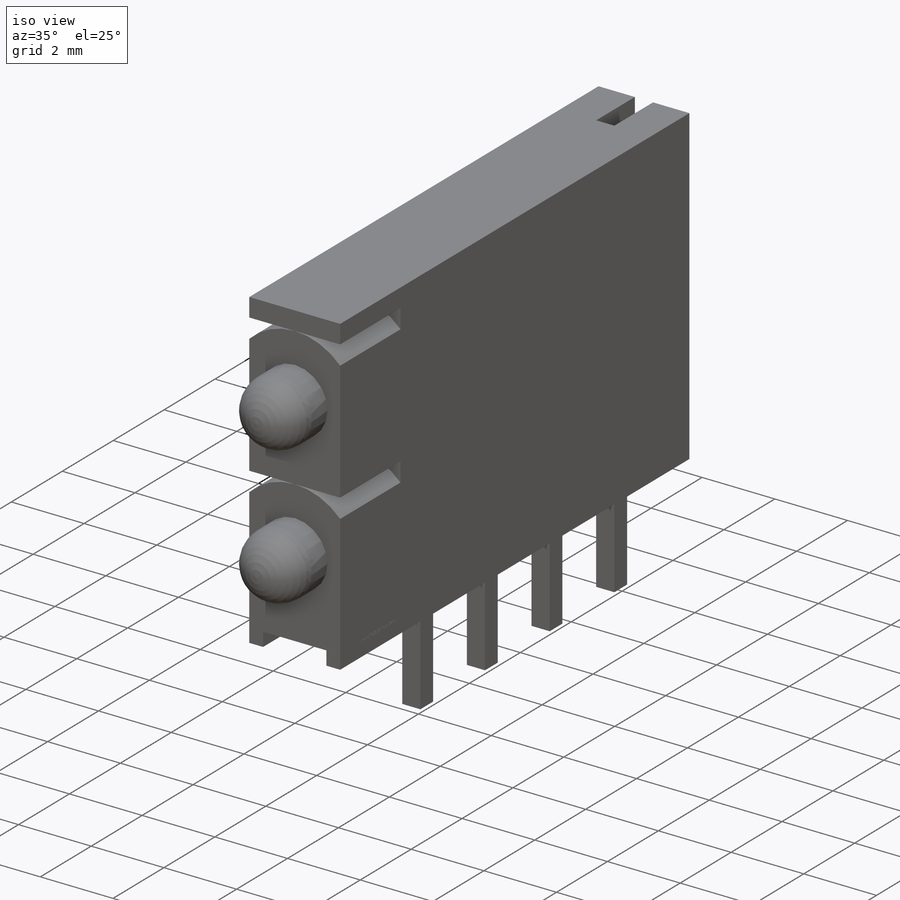
[diagram: iso view]
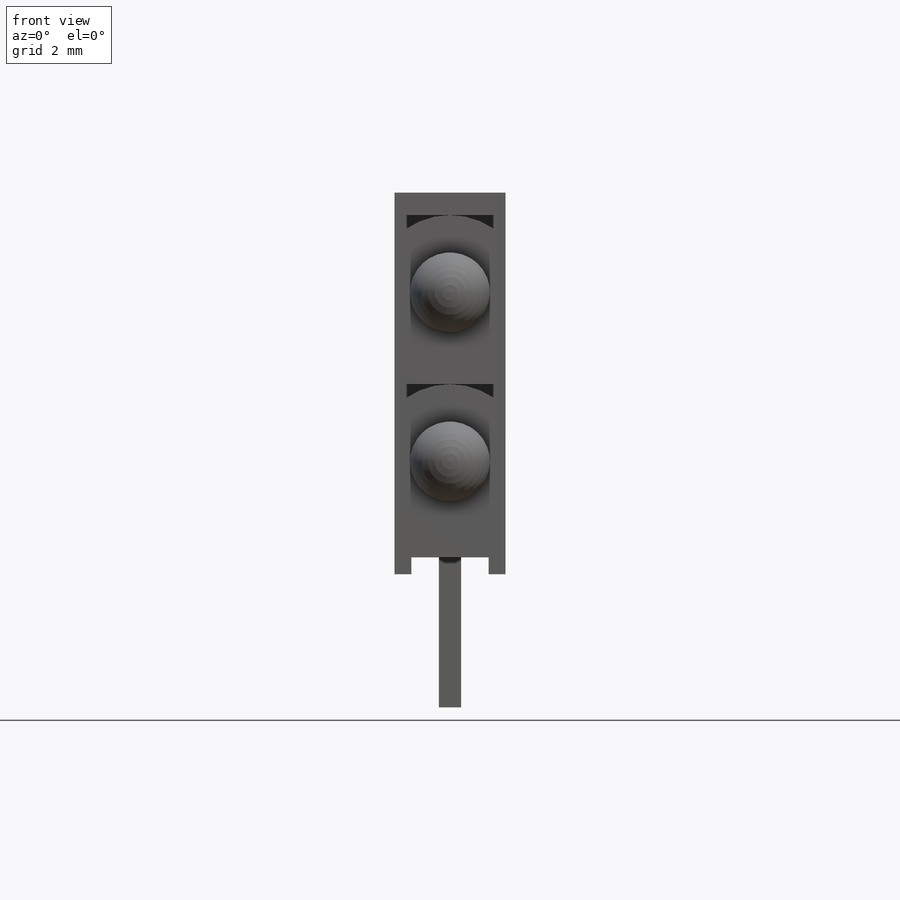
[diagram: front view]
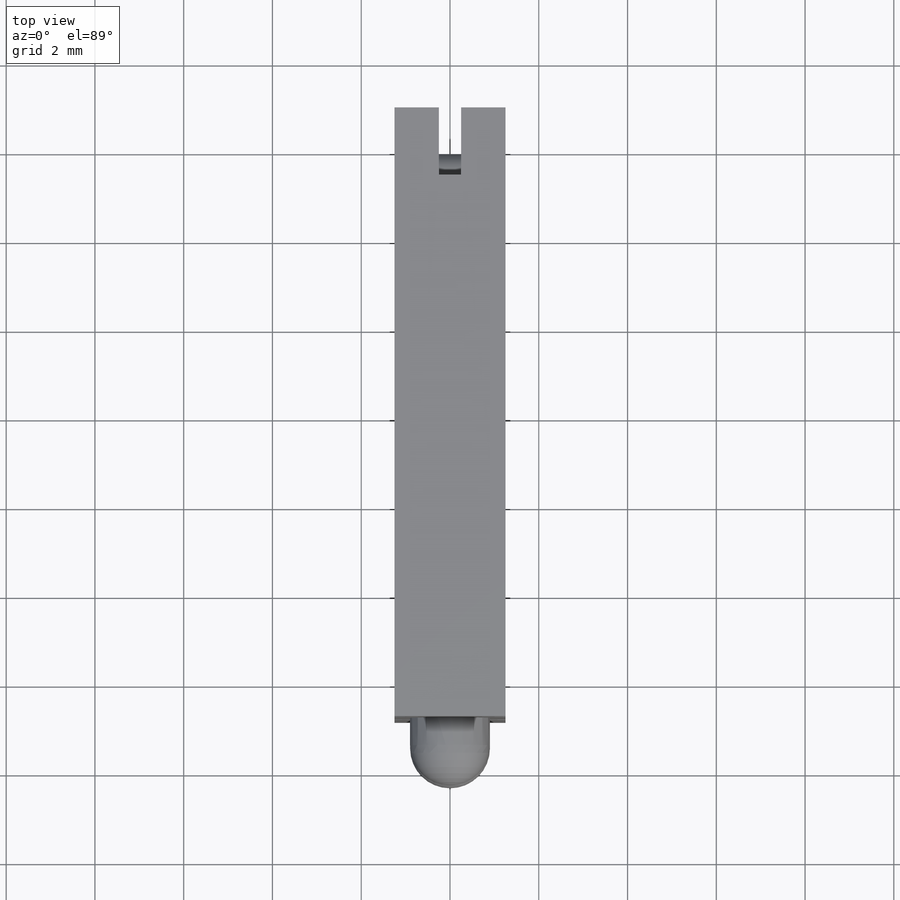
[diagram: top view]
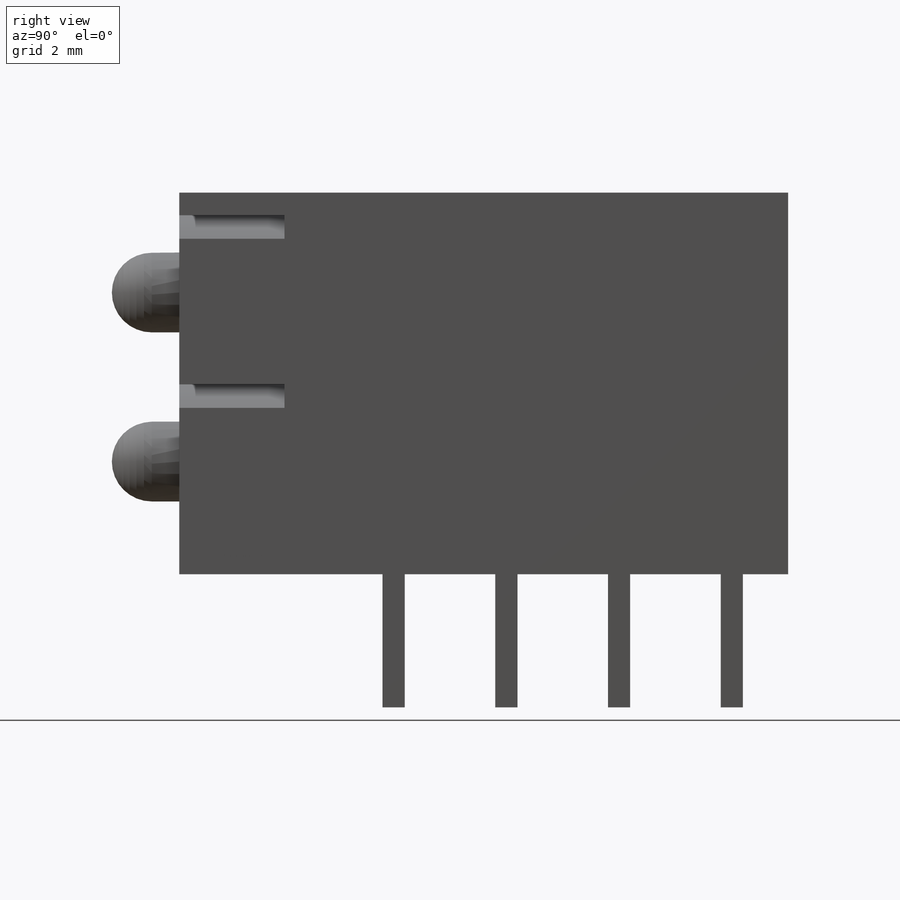
[diagram: right view]
SOLIDWORKS PART (.sldprt)
format: sldprt  version: not decoded by parser v0  size: 772,608 bytes
history: native  units: mm
features: sketch x12, extrude x5, cut_extrude x5, revolve x2, material x1, fillet x1 (+11 scaffold rows collapsed)
feature tree (37):
  scaffold x11  (default folders/planes/origin — collapsed)
  material  "Material <not specified>"
  sketch  "Sketch1"  dims[c1.D3=1.8mm c1.D1=8.6mm c1.D2=13.72mm c1.D4=3.6mm c1.D5=2.54mm c1.D6=5.08mm c1.D7=5.08mm c1.D8=5.08mm c1.D9=0.5mm c1.D10=1.94mm c1.D11=3.7mm c1.D12=7.4mm c1.D13=1.0mm c1.D14=2.0mm c2.D4=1.52mm c2.D5=2.54mm c2.D6=3.81mm c2.D7=2.37mm c2.D8=~2.183318mm c3.D7=0.38mm]
  extrude  "Extrude1"  Depth=2.5mm
  sketch  "Sketch2"  dims[c1.D1=0.5mm c1.D2=0.7mm c1.D3=0.5mm c2.D2=0.31mm c2.D1=0.8mm c3.D2=0.38mm c3.D3=0.38mm c3.D4=0.38mm]
  cut_extrude  "Cut-Extrude4"  Depth=2.37mm
  extrude  "Extrude8"  [1 undecoded]
  sketch  "Sketch2<8>"  dims[D1=2.37mm]
  revolve  "Revolve1"  [1 undecoded]
  sketch  "Sketch1<10>"  dims[D1=360.0deg]
  revolve  "Revolve2"  [1 undecoded]
  sketch  "Sketch1<11>"  dims[D1=360.0deg]
  cut_extrude  "Cut-Extrude5"  [1 undecoded]
  sketch  "Sketch2<9>"
  sketch  "Sketch3"  dims[c1.D1=0.5mm c1.D2=0.5mm c1.D3=0.5mm c1.D4=0.5mm c1.D5=0.5mm c1.D6=4.3mm c1.D7=0.5mm c2.D7=90.0deg c3.D7=2.54mm c3.D8=2.54mm c3.D9=2.54mm c3.D6=4.83mm]
  cut_extrude  "Cut-Extrude6"  [1 undecoded]
  extrude  "Extrude9"  [1 undecoded]
  sketch  "Sketch3<3>"
  extrude  "Extrude10"  [1 undecoded]
  sketch  "Sketch3<4>"
  extrude  "Extrude11"  [1 undecoded]
  sketch  "Sketch3<5>"  dims[D1=3.0mm]
  cut_extrude  "Cut-Extrude7"  [1 undecoded]
  sketch  "Sketch3<6>"  dims[D1=3.0mm]
  fillet  "Fillet1"  Radius=0.5mm
  sketch  "Sketch5"  dims[D1=~5.042639mm]
  cut_extrude  "Cut-Extrude8"  Depth=0.01mm
decode coverage: 13 of 25 modeling features carry decoded parameters
note: ~ marks probable driven/reference dimensions
note: 9 parameter values undecoded
summary: no parameter record found for 9 features
note: suppression state not decoded; provenance and decode notes live in map.json
